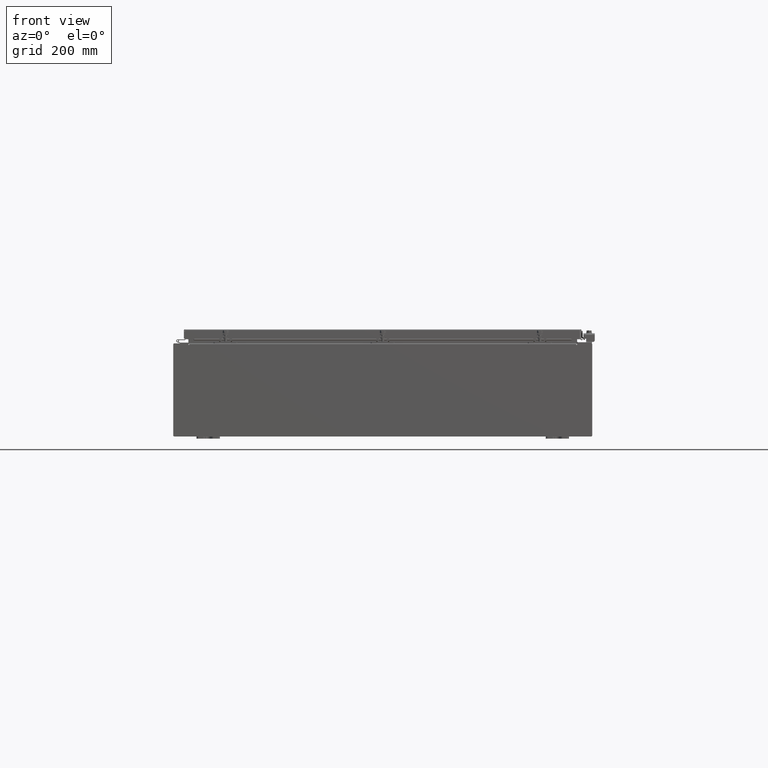
[diagram: clean part render]
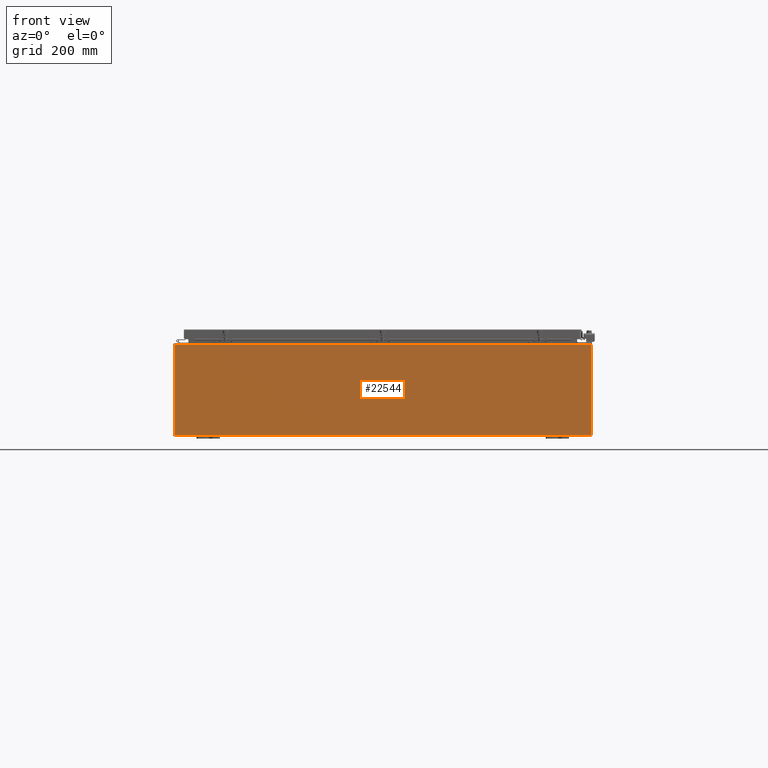
[diagram: same view with one face highlighted and labeled with its STEP entity id]
A machine part, front view. The second image highlights one B-rep face of the part: STEP entity #22544.
In plain terms, the highlighted planar face has unit normal (-0, 1, -0).
Its self-contained STEP definition (entity closure, byte-faithful):
#303 = CARTESIAN_POINT ( 'NONE',  ( 16.67455000000000700, 0.0000000000000000000, 3.874950000000000100 ) ) ;
#840 = VECTOR ( 'NONE', #10024, 39.37007874015748100 ) ;
#1581 = CARTESIAN_POINT ( 'NONE',  ( -16.65587499999999800, 0.0000000000000000000, 3.874950000000000100 ) ) ;
#2532 = EDGE_CURVE ( 'NONE', #19484, #19025, #4448, .T. ) ;
#3180 = DIRECTION ( 'NONE',  ( 0.0000000000000000000, 0.0000000000000000000, -1.000000000000000000 ) ) ;
#3655 = ORIENTED_EDGE ( 'NONE', *, *, #6326, .T. ) ;
#4286 = LINE ( 'NONE', #43521, #37301 ) ;
#4448 = CIRCLE ( 'NONE', #17916, 0.01867499999999949400 ) ;
#4496 = CARTESIAN_POINT ( 'NONE',  ( 16.67454999999967000, -0.0000000000000000000, -1.447541957108349400E-012 ) ) ;
#4914 = LINE ( 'NONE', #24998, #10960 ) ;
#5202 = DIRECTION ( 'NONE',  ( 1.000000000000000000, 0.0000000000000000000, 0.0000000000000000000 ) ) ;
#5382 = CARTESIAN_POINT ( 'NONE',  ( -17.92529999999999600, 0.0000000000000000000, 3.925300000000000500 ) ) ;
#6014 = VERTEX_POINT ( 'NONE', #50460 ) ;
#6287 = ORIENTED_EDGE ( 'NONE', *, *, #2532, .F. ) ;
#6326 = EDGE_CURVE ( 'NONE', #14303, #39657, #39623, .T. ) ;
#6665 = EDGE_CURVE ( 'NONE', #44829, #16287, #51620, .T. ) ;
#8011 = VECTOR ( 'NONE', #54325, 39.37007874015748100 ) ;
#8809 = DIRECTION ( 'NONE',  ( -0.0000000000000000000, 1.000000000000000000, -0.0000000000000000000 ) ) ;
#10024 = DIRECTION ( 'NONE',  ( 0.0000000000000000000, 0.0000000000000000000, -1.000000000000000000 ) ) ;
#10147 = VERTEX_POINT ( 'NONE', #54519 ) ;
#10440 = FACE_OUTER_BOUND ( 'NONE', #52254, .T. ) ;
#10687 = VERTEX_POINT ( 'NONE', #15707 ) ;
#10960 = VECTOR ( 'NONE', #3180, 39.37007874015748100 ) ;
#11608 = VECTOR ( 'NONE', #25970, 39.37007874015748100 ) ;
#11786 = CARTESIAN_POINT ( 'NONE',  ( 0.0000000000000000000, 0.0000000000000000000, 0.0000000000000000000 ) ) ;
#12228 = LINE ( 'NONE', #40249, #840 ) ;
#13244 = DIRECTION ( 'NONE',  ( -0.0000000000000000000, 1.000000000000000000, -0.0000000000000000000 ) ) ;
#13469 = CARTESIAN_POINT ( 'NONE',  ( -17.92529999999999600, 0.0000000000000000000, 3.925300000000000500 ) ) ;
#13691 = ORIENTED_EDGE ( 'NONE', *, *, #42720, .F. ) ;
#14303 = VERTEX_POINT ( 'NONE', #42282 ) ;
#15313 = EDGE_CURVE ( 'NONE', #6014, #14303, #19559, .T. ) ;
#15620 = DIRECTION ( 'NONE',  ( 0.0000000000000000000, 0.0000000000000000000, 1.000000000000000000 ) ) ;
#15629 = VECTOR ( 'NONE', #47598, 39.37007874015748100 ) ;
#15707 = CARTESIAN_POINT ( 'NONE',  ( -16.63719999999999600, 3.756290991288361700E-016, 3.912300000000000100 ) ) ;
#16024 = DIRECTION ( 'NONE',  ( 1.000000000000000000, 0.0000000000000000000, 0.0000000000000000000 ) ) ;
#16114 = VERTEX_POINT ( 'NONE', #36342 ) ;
#16287 = VERTEX_POINT ( 'NONE', #32703 ) ;
#17425 = DIRECTION ( 'NONE',  ( 0.0000000000000000000, 0.0000000000000000000, -1.000000000000000000 ) ) ;
#17714 = ORIENTED_EDGE ( 'NONE', *, *, #41978, .F. ) ;
#17916 = AXIS2_PLACEMENT_3D ( 'NONE', #36938, #8809, #43147 ) ;
#19025 = VERTEX_POINT ( 'NONE', #39739 ) ;
#19187 = EDGE_CURVE ( 'NONE', #10147, #37754, #24437, .T. ) ;
#19484 = VERTEX_POINT ( 'NONE', #303 ) ;
#19559 = LINE ( 'NONE', #28495, #8011 ) ;
#21514 = CARTESIAN_POINT ( 'NONE',  ( -17.92529999999999600, 0.0000000000000000000, -3.925299999999999100 ) ) ;
#21631 = ORIENTED_EDGE ( 'NONE', *, *, #15313, .T. ) ;
#22091 = AXIS2_PLACEMENT_3D ( 'NONE', #1581, #13244, #17425 ) ;
#22124 = EDGE_CURVE ( 'NONE', #37754, #39657, #52106, .T. ) ;
#22544 = ADVANCED_FACE ( 'NONE', ( #10440 ), #24764, .F. ) ;
#23764 = VERTEX_POINT ( 'NONE', #35794 ) ;
#24437 = CIRCLE ( 'NONE', #22091, 0.01867499999999949400 ) ;
#24561 = LINE ( 'NONE', #21514, #11608 ) ;
#24668 = CARTESIAN_POINT ( 'NONE',  ( -16.67454999999999600, 0.0000000000000000000, 3.925300000000000500 ) ) ;
#24764 = PLANE ( 'NONE',  #55381 ) ;
#24998 = CARTESIAN_POINT ( 'NONE',  ( -16.63719999999999600, -0.0000000000000000000, 0.0000000000000000000 ) ) ;
#25970 = DIRECTION ( 'NONE',  ( -1.000000000000000000, -0.0000000000000000000, -0.0000000000000000000 ) ) ;
#27254 = LINE ( 'NONE', #4496, #15629 ) ;
#28495 = CARTESIAN_POINT ( 'NONE',  ( -17.92529999999999600, 0.0000000000000000000, 3.925300000000000500 ) ) ;
#28722 = ORIENTED_EDGE ( 'NONE', *, *, #19187, .F. ) ;
#28785 = DIRECTION ( 'NONE',  ( 0.0000000000000000000, -0.0000000000000000000, -1.000000000000000000 ) ) ;
#29433 = VECTOR ( 'NONE', #39391, 39.37007874015748100 ) ;
#29796 = CARTESIAN_POINT ( 'NONE',  ( 16.67455000000001100, 0.0000000000000000000, 3.925300000000000500 ) ) ;
#30196 = ORIENTED_EDGE ( 'NONE', *, *, #42301, .T. ) ;
#30423 = CARTESIAN_POINT ( 'NONE',  ( -16.67454999999999600, -0.0000000000000000000, 0.0000000000000000000 ) ) ;
#31145 = ORIENTED_EDGE ( 'NONE', *, *, #6665, .T. ) ;
#32703 = CARTESIAN_POINT ( 'NONE',  ( 17.92530000000000400, 0.0000000000000000000, 3.925300000000000500 ) ) ;
#32767 = EDGE_CURVE ( 'NONE', #16287, #16114, #12228, .T. ) ;
#35794 = CARTESIAN_POINT ( 'NONE',  ( 16.63720000000000700, 0.0000000000000000000, 3.912300000000000100 ) ) ;
#36342 = CARTESIAN_POINT ( 'NONE',  ( 17.92530000000000400, 0.0000000000000000000, -3.925299999999999100 ) ) ;
#36938 = CARTESIAN_POINT ( 'NONE',  ( 16.65587500000000500, 0.0000000000000000000, 3.874950000000000100 ) ) ;
#37301 = VECTOR ( 'NONE', #51994, 39.37007874015748100 ) ;
#37754 = VERTEX_POINT ( 'NONE', #45380 ) ;
#39391 = DIRECTION ( 'NONE',  ( 0.0000000000000000000, 0.0000000000000000000, 1.000000000000000000 ) ) ;
#39623 = LINE ( 'NONE', #13469, #39678 ) ;
#39657 = VERTEX_POINT ( 'NONE', #24668 ) ;
#39678 = VECTOR ( 'NONE', #16024, 39.37007874015748100 ) ;
#39739 = CARTESIAN_POINT ( 'NONE',  ( 16.63720000000000700, 0.0000000000000000000, 3.874950000000000100 ) ) ;
#40249 = CARTESIAN_POINT ( 'NONE',  ( 17.92530000000000400, 0.0000000000000000000, 3.925300000000000500 ) ) ;
#41978 = EDGE_CURVE ( 'NONE', #19025, #23764, #52735, .T. ) ;
#42282 = CARTESIAN_POINT ( 'NONE',  ( -17.92529999999999600, 0.0000000000000000000, 3.925300000000000500 ) ) ;
#42301 = EDGE_CURVE ( 'NONE', #10687, #23764, #4286, .T. ) ;
#42341 = ORIENTED_EDGE ( 'NONE', *, *, #22124, .F. ) ;
#42712 = DIRECTION ( 'NONE',  ( 0.0000000000000000000, -1.000000000000000000, 0.0000000000000000000 ) ) ;
#42720 = EDGE_CURVE ( 'NONE', #10687, #10147, #4914, .T. ) ;
#42893 = EDGE_CURVE ( 'NONE', #44829, #19484, #27254, .T. ) ;
#43147 = DIRECTION ( 'NONE',  ( 0.0000000000000000000, 0.0000000000000000000, -1.000000000000000000 ) ) ;
#43163 = ORIENTED_EDGE ( 'NONE', *, *, #42893, .F. ) ;
#43260 = ORIENTED_EDGE ( 'NONE', *, *, #32767, .T. ) ;
#43521 = CARTESIAN_POINT ( 'NONE',  ( -16.63719999999999600, 3.756290991288361700E-016, 3.912300000000000100 ) ) ;
#44829 = VERTEX_POINT ( 'NONE', #29796 ) ;
#45380 = CARTESIAN_POINT ( 'NONE',  ( -16.67454999999999600, 0.0000000000000000000, 3.874950000000000100 ) ) ;
#45736 = CARTESIAN_POINT ( 'NONE',  ( 16.63720000000000700, 0.0000000000000000000, 0.0000000000000000000 ) ) ;
#47598 = DIRECTION ( 'NONE',  ( -8.681145560800009800E-014, 0.0000000000000000000, -1.000000000000000000 ) ) ;
#50254 = ORIENTED_EDGE ( 'NONE', *, *, #53594, .T. ) ;
#50460 = CARTESIAN_POINT ( 'NONE',  ( -17.92529999999999600, 0.0000000000000000000, -3.925299999999999100 ) ) ;
#51532 = VECTOR ( 'NONE', #5202, 39.37007874015748100 ) ;
#51620 = LINE ( 'NONE', #5382, #51532 ) ;
#51994 = DIRECTION ( 'NONE',  ( 1.000000000000000000, 0.0000000000000000000, 0.0000000000000000000 ) ) ;
#52106 = LINE ( 'NONE', #30423, #29433 ) ;
#52254 = EDGE_LOOP ( 'NONE', ( #42341, #28722, #13691, #30196, #17714, #6287, #43163, #31145, #43260, #50254, #21631, #3655 ) ) ;
#52735 = LINE ( 'NONE', #45736, #54008 ) ;
#53594 = EDGE_CURVE ( 'NONE', #16114, #6014, #24561, .T. ) ;
#54008 = VECTOR ( 'NONE', #15620, 39.37007874015748100 ) ;
#54325 = DIRECTION ( 'NONE',  ( -0.0000000000000000000, -0.0000000000000000000, 1.000000000000000000 ) ) ;
#54519 = CARTESIAN_POINT ( 'NONE',  ( -16.63719999999999600, -0.0000000000000000000, 3.874950000000000100 ) ) ;
#55381 = AXIS2_PLACEMENT_3D ( 'NONE', #11786, #42712, #28785 ) ;